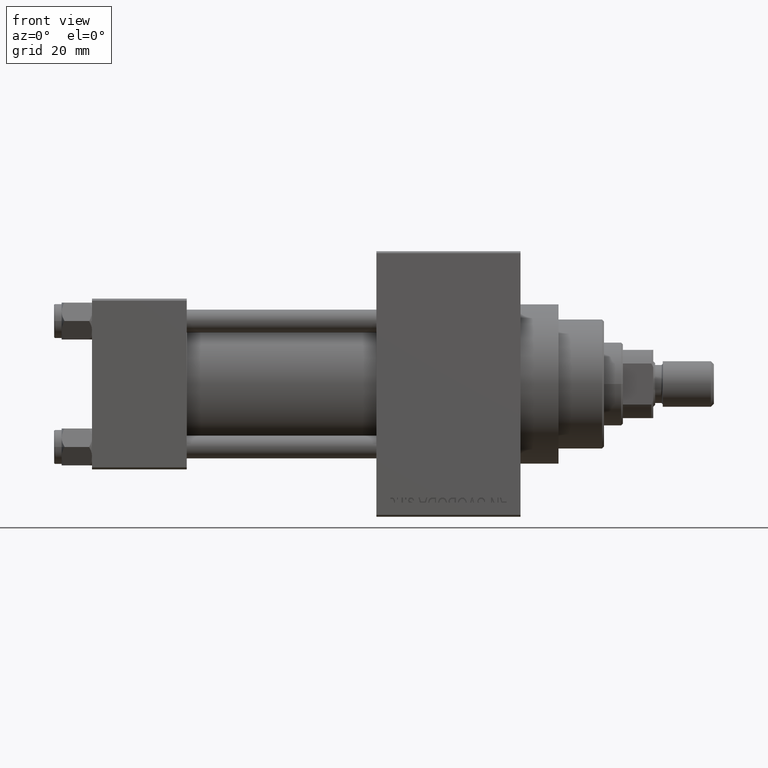
[diagram: clean part render]
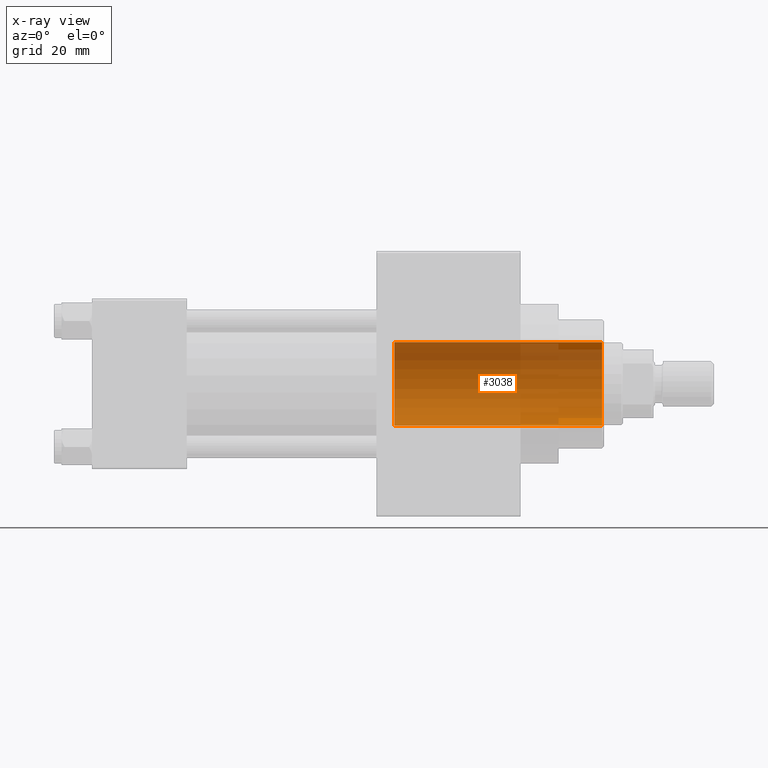
[diagram: x-ray — body ghosted, one internal face saturated and labeled with its STEP entity id]
A machine part, front view, then the same camera in x-ray: the body is ghosted and one INTERNAL B-rep face — a face not visible from any outside direction — is saturated and labeled: STEP entity #3038.
In plain terms, the highlighted cylindrical surface (partial cylindrical patch) has radius 11 mm, axis along (1, -0, -0).
Its self-contained STEP definition (entity closure, byte-faithful):
#1274 = EDGE_CURVE ( 'NONE', #10834, #11662, #41725, .T. ) ;
#2289 = DIRECTION ( 'NONE',  ( -0.000000000000000000, -0.000000000000000000, -1.000000000000000000 ) ) ;
#3038 = ADVANCED_FACE ( 'NONE', ( #7882 ), #34612, .F. ) ;
#4978 = DIRECTION ( 'NONE',  ( 1.000000000000000000, 0.000000000000000000, 0.000000000000000000 ) ) ;
#6530 = ORIENTED_EDGE ( 'NONE', *, *, #47233, .T. ) ;
#7882 = FACE_OUTER_BOUND ( 'NONE', #30987, .T. ) ;
#8115 = ORIENTED_EDGE ( 'NONE', *, *, #41873, .F. ) ;
#9644 = EDGE_CURVE ( 'NONE', #12929, #13899, #37282, .T. ) ;
#10654 = CARTESIAN_POINT ( 'NONE',  ( 11.00000000000000000, 0.000000000000000000, -31.11269837220809364 ) ) ;
#10834 = VERTEX_POINT ( 'NONE', #36599 ) ;
#11662 = VERTEX_POINT ( 'NONE', #16837 ) ;
#12218 = CARTESIAN_POINT ( 'NONE',  ( 0.000000000000000000, 0.000000000000000000, -31.11269837220809364 ) ) ;
#12796 = VECTOR ( 'NONE', #15397, 1000.000000000000000 ) ;
#12929 = VERTEX_POINT ( 'NONE', #33569 ) ;
#13899 = VERTEX_POINT ( 'NONE', #24150 ) ;
#14986 = AXIS2_PLACEMENT_3D ( 'NONE', #23758, #2289, #19912 ) ;
#15397 = DIRECTION ( 'NONE',  ( -0.000000000000000000, -0.000000000000000000, 1.000000000000000000 ) ) ;
#16074 = DIRECTION ( 'NONE',  ( -0.000000000000000000, -0.000000000000000000, 1.000000000000000000 ) ) ;
#16837 = CARTESIAN_POINT ( 'NONE',  ( -11.00000000000000000, 1.347111479062088405E-15, 54.76000000000000512 ) ) ;
#17070 = CARTESIAN_POINT ( 'NONE',  ( 0.000000000000000000, 0.000000000000000000, 54.76000000000000512 ) ) ;
#19912 = DIRECTION ( 'NONE',  ( 1.000000000000000000, 0.000000000000000000, 0.000000000000000000 ) ) ;
#21302 = VECTOR ( 'NONE', #23254, 1000.000000000000000 ) ;
#21739 = LINE ( 'NONE', #10654, #12796 ) ;
#23254 = DIRECTION ( 'NONE',  ( -0.000000000000000000, -0.000000000000000000, 1.000000000000000000 ) ) ;
#23283 = AXIS2_PLACEMENT_3D ( 'NONE', #17070, #24086, #46430 ) ;
#23758 = CARTESIAN_POINT ( 'NONE',  ( 0.000000000000000000, 0.000000000000000000, 0.000000000000000000 ) ) ;
#24086 = DIRECTION ( 'NONE',  ( -0.000000000000000000, -0.000000000000000000, -1.000000000000000000 ) ) ;
#24150 = CARTESIAN_POINT ( 'NONE',  ( -11.00000000000000000, 1.347111479062088405E-15, 0.000000000000000000 ) ) ;
#28124 = ORIENTED_EDGE ( 'NONE', *, *, #9644, .T. ) ;
#30987 = EDGE_LOOP ( 'NONE', ( #28124, #6530, #31368, #8115 ) ) ;
#31368 = ORIENTED_EDGE ( 'NONE', *, *, #1274, .F. ) ;
#33569 = CARTESIAN_POINT ( 'NONE',  ( 11.00000000000000000, 0.000000000000000000, 0.000000000000000000 ) ) ;
#34566 = CARTESIAN_POINT ( 'NONE',  ( -11.00000000000000000, 1.347111479062088405E-15, -31.11269837220809364 ) ) ;
#34612 = CYLINDRICAL_SURFACE ( 'NONE', #40103, 11.00000000000000000 ) ;
#36599 = CARTESIAN_POINT ( 'NONE',  ( 11.00000000000000000, 0.000000000000000000, 54.76000000000000512 ) ) ;
#37282 = CIRCLE ( 'NONE', #14986, 11.00000000000000000 ) ;
#40103 = AXIS2_PLACEMENT_3D ( 'NONE', #12218, #16074, #4978 ) ;
#41725 = CIRCLE ( 'NONE', #23283, 11.00000000000000000 ) ;
#41873 = EDGE_CURVE ( 'NONE', #12929, #10834, #21739, .T. ) ;
#44894 = LINE ( 'NONE', #34566, #21302 ) ;
#46430 = DIRECTION ( 'NONE',  ( 1.000000000000000000, 0.000000000000000000, 0.000000000000000000 ) ) ;
#47233 = EDGE_CURVE ( 'NONE', #13899, #11662, #44894, .T. ) ;